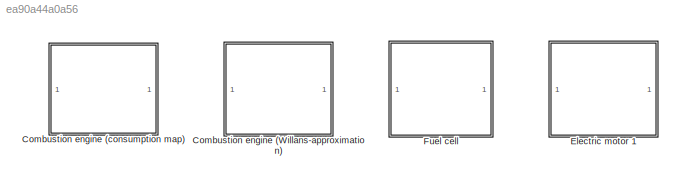
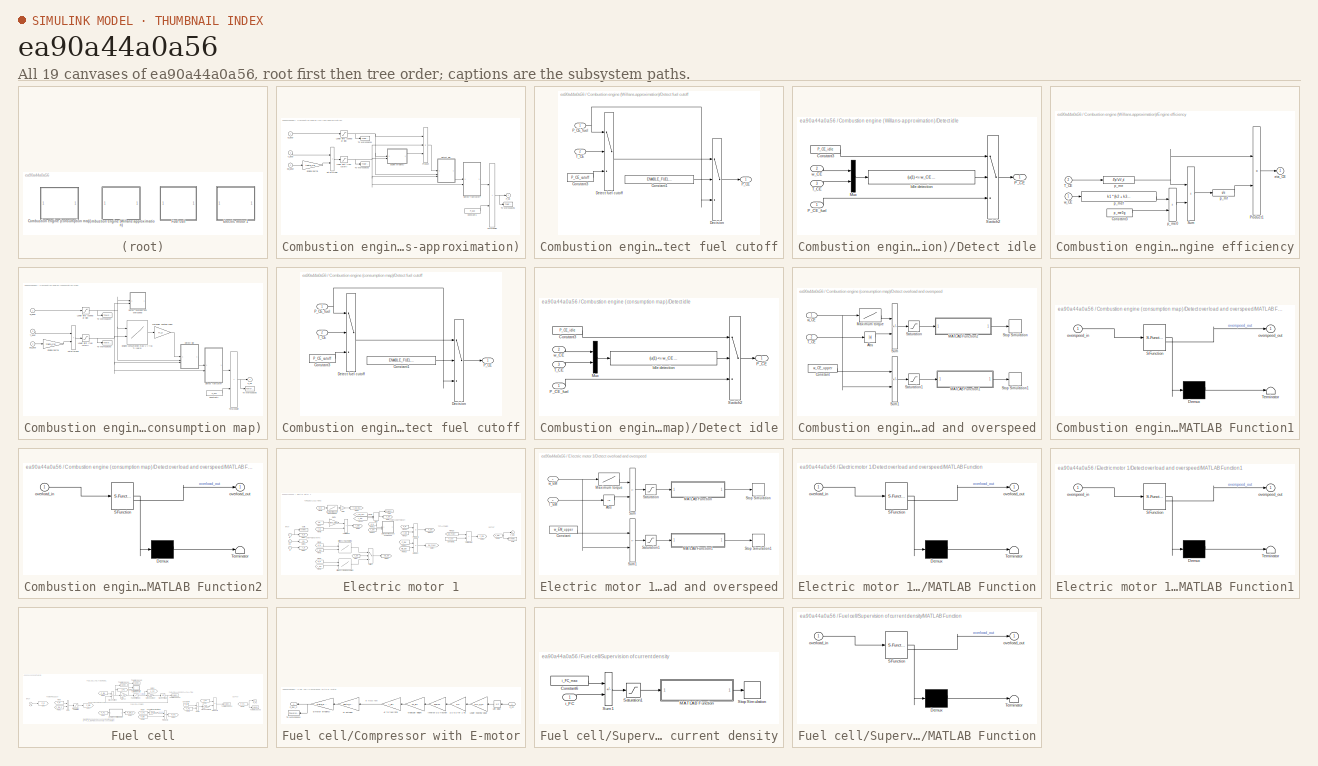
[diagram: thumbnail index - all 19 canvases of the model, root first then tree order]
MODEL slx_ea90a44a0a56
KIND library
CONFIG AbsTol = auto
CONFIG EnableMultiTasking = off
CONFIG FixedStep = auto
CONFIG MaxStep = auto
CONFIG MinStep = auto
CONFIG RelTol = 1e-3
CONFIG SampleTimeConstraint = Unconstrained
CONFIG SolverName = VariableStepAuto
CONFIG StartTime = 0.0
CONFIG StopTime = 10.0
BLOCK [SubSystem] Combustion engine (Willans-approximation)
  Tag = combustion engine
BLOCK [Constant] Combustion engine (Willans-approximation)/Constant1
  Value = P_aux
BLOCK [SubSystem] Combustion engine (Willans-approximation)/Detect fuel cutoff
  AncestorBlock = qss_tb_library/Energy Converter/Combustion Engine\n(consumption map)/Detect fuel cutoff
  LibrarySourceBlock = qss_tb_library/Energy Converter/Combustion Engine\n(consumption map)/Detect fuel cutoff
BLOCK [Constant] Combustion engine (Willans-approximation)/Detect fuel cutoff/Constant1
  Value = ENABLE_FUEL_CUTOFF
BLOCK [Constant] Combustion engine (Willans-approximation)/Detect fuel cutoff/Constant3
  Value = P_CE_cutoff
BLOCK [Switch] Combustion engine (Willans-approximation)/Detect fuel cutoff/Decision
  InputSameDT = off
  SaturateOnIntegerOverflow = off
  Threshold = 0.5
BLOCK [Switch] Combustion engine (Willans-approximation)/Detect fuel cutoff/Detect fuel cutoff
  Threshold = T_CE_cutoff + 0.01
BLOCK [Outport] Combustion engine (Willans-approximation)/Detect fuel cutoff/P_CE
BLOCK [Inport] Combustion engine (Willans-approximation)/Detect fuel cutoff/P_CE_fuel
BLOCK [Inport] Combustion engine (Willans-approximation)/Detect fuel cutoff/T_CE
  Port = 2
BLOCK [SubSystem] Combustion engine (Willans-approximation)/Detect idle
BLOCK [Constant] Combustion engine (Willans-approximation)/Detect idle/Constant3
  Value = P_CE_idle
BLOCK [Fcn] Combustion engine (Willans-approximation)/Detect idle/Idle detection
  Expr = (u(1) <= w_CE_idle) * (u(2) <= T_CE_idle)
BLOCK [Mux] Combustion engine (Willans-approximation)/Detect idle/Mux
  DisplayOption = bar
  Inputs = 2
BLOCK [Outport] Combustion engine (Willans-approximation)/Detect idle/P_CE
  InitialOutput = 0
BLOCK [Inport] Combustion engine (Willans-approximation)/Detect idle/P_CE_fuel
BLOCK [Switch] Combustion engine (Willans-approximation)/Detect idle/Switch2
  Threshold = 0.5
BLOCK [Inport] Combustion engine (Willans-approximation)/Detect idle/T_CE
  Port = 3
BLOCK [Inport] Combustion engine (Willans-approximation)/Detect idle/w_CE
  Port = 2
BLOCK [SubSystem] Combustion engine (Willans-approximation)/Engine efficiency
BLOCK [Constant] Combustion engine (Willans-approximation)/Engine efficiency/Constant3
  Value = p_me0g
BLOCK [Product] Combustion engine (Willans-approximation)/Engine efficiency/Product1
  InputSameDT = on
  Inputs = */
  OutDataTypeStr = Inherit: Same as first input
  RndMeth = Zero
  SaturateOnIntegerOverflow = on
BLOCK [Sum] Combustion engine (Willans-approximation)/Engine efficiency/Sum
  IconShape = rectangular
  InputSameDT = on
  OutDataTypeStr = Inherit: Same as first input
  SaturateOnIntegerOverflow = on
BLOCK [Inport] Combustion engine (Willans-approximation)/Engine efficiency/T_CE
  Port = 2
BLOCK [Outport] Combustion engine (Willans-approximation)/Engine efficiency/eta_CE
  InitialOutput = 0
BLOCK [Fcn] Combustion engine (Willans-approximation)/Engine efficiency/p_me
  Expr = 4*pi*u/V_d
BLOCK [Sum] Combustion engine (Willans-approximation)/Engine efficiency/p_me0
  IconShape = rectangular
  InputSameDT = on
  OutDataTypeStr = Inherit: Same as first input
  SaturateOnIntegerOverflow = on
BLOCK [Fcn] Combustion engine (Willans-approximation)/Engine efficiency/p_mef
  Expr = k1 * (k2 + k3*(S^2)*(u^2)) * PI * sqrt(k4/B)
BLOCK [Fcn] Combustion engine (Willans-approximation)/Engine efficiency/p_mf
  Expr = u/e
BLOCK [Inport] Combustion engine (Willans-approximation)/Engine efficiency/w_CE
BLOCK [Gain] Combustion engine (Willans-approximation)/Engine inertia
  Gain = theta_CE
  OutDataTypeStr = Inherit: Same as input
  ParamDataTypeStr = Inherit: Same as input
  SaturateOnIntegerOverflow = on
BLOCK [Saturate] Combustion engine (Willans-approximation)/Lower limit (fuel cutoff)
  LowerLimit = T_CE_cutoff
  UpperLimit = inf
BLOCK [Saturate] Combustion engine (Willans-approximation)/Lower limit (speed at idle)
  LowerLimit = w_CE_idle
  UpperLimit = inf
BLOCK [Outport] Combustion engine (Willans-approximation)/P_CE
  InitialOutput = 0
BLOCK [Product] Combustion engine (Willans-approximation)/Product
  InputSameDT = on
  Inputs = **/
  OutDataTypeStr = Inherit: Same as first input
  RndMeth = Zero
  SaturateOnIntegerOverflow = on
BLOCK [Inport] Combustion engine (Willans-approximation)/T_gear
  Port = 3
BLOCK [ToWorkspace] Combustion engine (Willans-approximation)/To Workspace3
  MaxDataPoints = inf
  NameLocation = top
  SampleTime = -1
  VariableName = T_CE
BLOCK [ToWorkspace] Combustion engine (Willans-approximation)/To Workspace4
  MaxDataPoints = inf
  SampleTime = -1
  VariableName = w_CE
BLOCK [ToWorkspace] Combustion engine (Willans-approximation)/To Workspace5
  MaxDataPoints = inf
  NameLocation = top
  SampleTime = -1
  VariableName = P_CE
BLOCK [Sum] Combustion engine (Willans-approximation)/Total power
  IconShape = rectangular
  InputSameDT = on
  OutDataTypeStr = Inherit: Same as first input
  SaturateOnIntegerOverflow = on
BLOCK [Sum] Combustion engine (Willans-approximation)/Total torque
  IconShape = rectangular
  InputSameDT = on
  OutDataTypeStr = Inherit: Same as first input
  SaturateOnIntegerOverflow = on
BLOCK [Inport] Combustion engine (Willans-approximation)/dw_gear
  Port = 2
BLOCK [Inport] Combustion engine (Willans-approximation)/w_gear
BLOCK [SubSystem] Combustion engine (consumption map)
  Tag = combustion engine
BLOCK [Constant] Combustion engine (consumption map)/Constant1
  Value = P_aux
BLOCK [SubSystem] Combustion engine (consumption map)/Detect fuel cutoff
BLOCK [Constant] Combustion engine (consumption map)/Detect fuel cutoff/Constant1
  Value = ENABLE_FUEL_CUTOFF
BLOCK [Constant] Combustion engine (consumption map)/Detect fuel cutoff/Constant3
  Value = P_CE_cutoff
BLOCK [Switch] Combustion engine (consumption map)/Detect fuel cutoff/Decision
  InputSameDT = off
  SaturateOnIntegerOverflow = off
  Threshold = 0.5
BLOCK [Switch] Combustion engine (consumption map)/Detect fuel cutoff/Detect fuel cutoff
  Threshold = T_CE_cutoff + 0.01
BLOCK [Outport] Combustion engine (consumption map)/Detect fuel cutoff/P_CE
BLOCK [Inport] Combustion engine (consumption map)/Detect fuel cutoff/P_CE_fuel
BLOCK [Inport] Combustion engine (consumption map)/Detect fuel cutoff/T_CE
  Port = 2
BLOCK [SubSystem] Combustion engine (consumption map)/Detect idle
BLOCK [Constant] Combustion engine (consumption map)/Detect idle/Constant3
  Value = P_CE_idle
BLOCK [Fcn] Combustion engine (consumption map)/Detect idle/Idle detection
  Expr = (u(1) <= w_CE_idle) * (u(2) <= T_CE_idle)
BLOCK [Mux] Combustion engine (consumption map)/Detect idle/Mux
  DisplayOption = bar
  Inputs = 2
BLOCK [Outport] Combustion engine (consumption map)/Detect idle/P_CE
  InitialOutput = 0
BLOCK [Inport] Combustion engine (consumption map)/Detect idle/P_CE_fuel
BLOCK [Switch] Combustion engine (consumption map)/Detect idle/Switch2
  Threshold = 0.5
BLOCK [Inport] Combustion engine (consumption map)/Detect idle/T_CE
  Port = 3
BLOCK [Inport] Combustion engine (consumption map)/Detect idle/w_CE
  Port = 2
BLOCK [SubSystem] Combustion engine (consumption map)/Detect overload and overspeed
BLOCK [Abs] Combustion engine (consumption map)/Detect overload and overspeed/Abs
BLOCK [Constant] Combustion engine (consumption map)/Detect overload and overspeed/Constant
  Value = w_CE_upper
BLOCK [SubSystem] Combustion engine (consumption map)/Detect overload and overspeed/MATLAB Function1
  ErrorFcn = Stateflow.Translate.translate
  PermitHierarchicalResolution = ExplicitOnly
  SFBlockType = MATLAB Function
  TreatAsAtomicUnit = on
BLOCK [Demux] Combustion engine (consumption map)/Detect overload and overspeed/MATLAB Function1/ Demux 
  Outputs = 1
BLOCK [S-Function] Combustion engine (consumption map)/Detect overload and overspeed/MATLAB Function1/ SFunction 
  EnableBusSupport = off
  FunctionName = sf_sfun
  PortCounts = [1 2]
  SFcnIsStateOwnerBlock = off
  SFunctionDeploymentMode = off
  Tag = Stateflow S-Function 6
BLOCK [Terminator] Combustion engine (consumption map)/Detect overload and overspeed/MATLAB Function1/ Terminator 
BLOCK [Inport] Combustion engine (consumption map)/Detect overload and overspeed/MATLAB Function1/overspeed_in
BLOCK [Outport] Combustion engine (consumption map)/Detect overload and overspeed/MATLAB Function1/overspeed_out
BLOCK [SubSystem] Combustion engine (consumption map)/Detect overload and overspeed/MATLAB Function2
  ErrorFcn = Stateflow.Translate.translate
  PermitHierarchicalResolution = ExplicitOnly
  SFBlockType = MATLAB Function
  TreatAsAtomicUnit = on
BLOCK [Demux] Combustion engine (consumption map)/Detect overload and overspeed/MATLAB Function2/ Demux 
  Outputs = 1
BLOCK [S-Function] Combustion engine (consumption map)/Detect overload and overspeed/MATLAB Function2/ SFunction 
  EnableBusSupport = off
  FunctionName = sf_sfun
  PortCounts = [1 2]
  SFcnIsStateOwnerBlock = off
  SFunctionDeploymentMode = off
  Tag = Stateflow S-Function 8
BLOCK [Terminator] Combustion engine (consumption map)/Detect overload and overspeed/MATLAB Function2/ Terminator 
BLOCK [Inport] Combustion engine (consumption map)/Detect overload and overspeed/MATLAB Function2/overload_in
BLOCK [Outport] Combustion engine (consumption map)/Detect overload and overspeed/MATLAB Function2/overload_out
BLOCK [Lookup] Combustion engine (consumption map)/Detect overload and overspeed/Maximum torque
  InputValues = w_CE_max
  Table = T_CE_max
BLOCK [Saturate] Combustion engine (consumption map)/Detect overload and overspeed/Saturation
  LowerLimit = -inf
  UpperLimit = 0
BLOCK [Saturate] Combustion engine (consumption map)/Detect overload and overspeed/Saturation1
  LowerLimit = -inf
  UpperLimit = 0
BLOCK [Stop] Combustion engine (consumption map)/Detect overload and overspeed/Stop Simulation
BLOCK [Stop] Combustion engine (consumption map)/Detect overload and overspeed/Stop Simulation1
BLOCK [Sum] Combustion engine (consumption map)/Detect overload and overspeed/Sum
  IconShape = rectangular
  InputSameDT = on
  Inputs = +-
  OutDataTypeStr = Inherit: Same as first input
  SaturateOnIntegerOverflow = on
BLOCK [Sum] Combustion engine (consumption map)/Detect overload and overspeed/Sum1
  IconShape = rectangular
  InputSameDT = on
  Inputs = +-
  OutDataTypeStr = Inherit: Same as first input
  SaturateOnIntegerOverflow = on
BLOCK [Inport] Combustion engine (consumption map)/Detect overload and overspeed/T_CE
  Port = 2
BLOCK [Inport] Combustion engine (consumption map)/Detect overload and overspeed/w_CE
BLOCK [Lookup2D] Combustion engine (consumption map)/Engine consumption map V = f(w, T) [kg//s]
  ColumnIndex = T_CE_col
  InputSameDT = off
  RowIndex = w_CE_row
  SaturateOnIntegerOverflow = off
  Table = V_CE_map
BLOCK [Gain] Combustion engine (consumption map)/Engine inertia
  Gain = theta_CE
  OutDataTypeStr = Inherit: Same as input
  ParamDataTypeStr = Inherit: Same as input
  SaturateOnIntegerOverflow = on
BLOCK [Gain] Combustion engine (consumption map)/Fuel lower heating value
  Gain = H_u
  OutDataTypeStr = Inherit: Same as input
  ParamDataTypeStr = Inherit: Same as input
  SaturateOnIntegerOverflow = on
BLOCK [Saturate] Combustion engine (consumption map)/Lower limit (fuel cutoff)
  LowerLimit = T_CE_cutoff
  UpperLimit = inf
BLOCK [Saturate] Combustion engine (consumption map)/Lower limit (speed at idle)
  LowerLimit = w_CE_idle
  UpperLimit = inf
BLOCK [Outport] Combustion engine (consumption map)/P_CE
  InitialOutput = 0
BLOCK [Inport] Combustion engine (consumption map)/T_gear
  Port = 3
BLOCK [ToWorkspace] Combustion engine (consumption map)/To Workspace3
  MaxDataPoints = inf
  NameLocation = top
  SampleTime = -1
  VariableName = T_CE
BLOCK [ToWorkspace] Combustion engine (consumption map)/To Workspace4
  MaxDataPoints = inf
  SampleTime = -1
  VariableName = w_CE
BLOCK [ToWorkspace] Combustion engine (consumption map)/To Workspace5
  MaxDataPoints = inf
  NameLocation = top
  SampleTime = -1
  VariableName = P_CE
BLOCK [Sum] Combustion engine (consumption map)/Total power
  IconShape = rectangular
  InputSameDT = on
  OutDataTypeStr = Inherit: Same as first input
  SaturateOnIntegerOverflow = on
BLOCK [Sum] Combustion engine (consumption map)/Total torque
  IconShape = rectangular
  InputSameDT = on
  OutDataTypeStr = Inherit: Same as first input
  SaturateOnIntegerOverflow = on
BLOCK [Inport] Combustion engine (consumption map)/dw_gear
  Port = 2
BLOCK [Inport] Combustion engine (consumption map)/w_gear
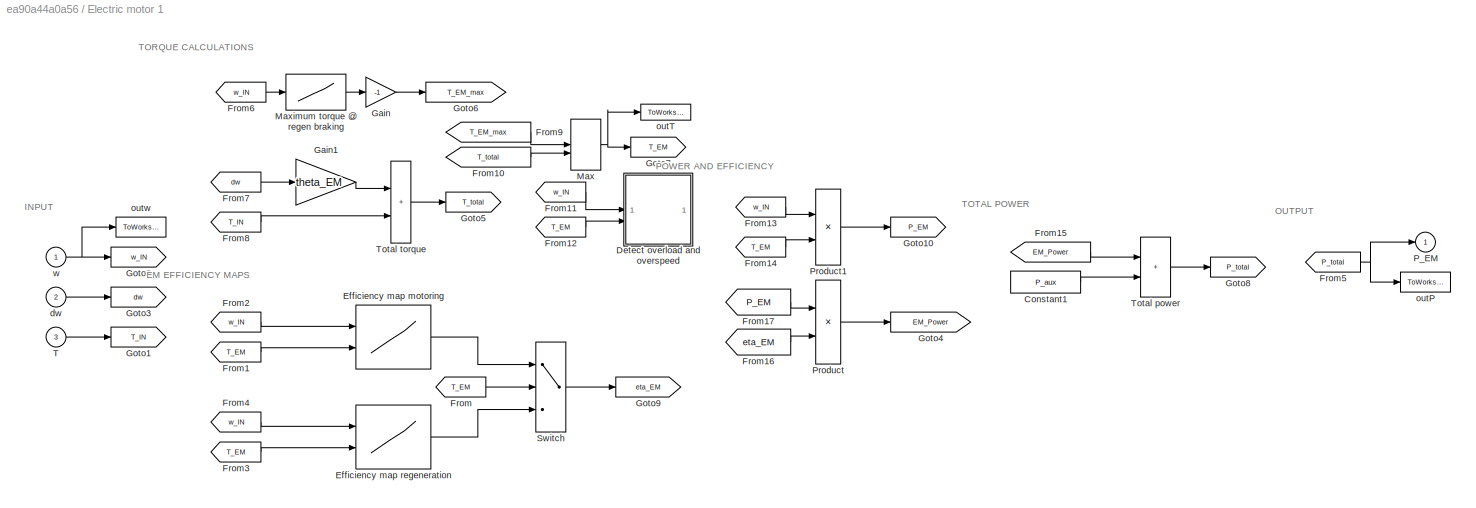
BLOCK [SubSystem] Electric motor 1
BLOCK [Constant] Electric motor 1/Constant1
  Value = P_aux
BLOCK [SubSystem] Electric motor 1/Detect overload and overspeed
BLOCK [Abs] Electric motor 1/Detect overload and overspeed/Abs
BLOCK [Constant] Electric motor 1/Detect overload and overspeed/Constant
  Value = w_EM_upper
BLOCK [SubSystem] Electric motor 1/Detect overload and overspeed/MATLAB Function
  ErrorFcn = Stateflow.Translate.translate
  PermitHierarchicalResolution = ExplicitOnly
  SFBlockType = MATLAB Function
  TreatAsAtomicUnit = on
BLOCK [Demux] Electric motor 1/Detect overload and overspeed/MATLAB Function/ Demux 
  Outputs = 1
BLOCK [S-Function] Electric motor 1/Detect overload and overspeed/MATLAB Function/ SFunction 
  EnableBusSupport = off
  FunctionName = sf_sfun
  PortCounts = [1 2]
  SFcnIsStateOwnerBlock = off
  SFunctionDeploymentMode = off
  Tag = Stateflow S-Function 1
BLOCK [Terminator] Electric motor 1/Detect overload and overspeed/MATLAB Function/ Terminator 
BLOCK [Inport] Electric motor 1/Detect overload and overspeed/MATLAB Function/overload_in
BLOCK [Outport] Electric motor 1/Detect overload and overspeed/MATLAB Function/overload_out
BLOCK [SubSystem] Electric motor 1/Detect overload and overspeed/MATLAB Function1
  ErrorFcn = Stateflow.Translate.translate
  PermitHierarchicalResolution = ExplicitOnly
  SFBlockType = MATLAB Function
  TreatAsAtomicUnit = on
BLOCK [Demux] Electric motor 1/Detect overload and overspeed/MATLAB Function1/ Demux 
  Outputs = 1
BLOCK [S-Function] Electric motor 1/Detect overload and overspeed/MATLAB Function1/ SFunction 
  EnableBusSupport = off
  FunctionName = sf_sfun
  PortCounts = [1 2]
  SFcnIsStateOwnerBlock = off
  SFunctionDeploymentMode = off
  Tag = Stateflow S-Function 2
BLOCK [Terminator] Electric motor 1/Detect overload and overspeed/MATLAB Function1/ Terminator 
BLOCK [Inport] Electric motor 1/Detect overload and overspeed/MATLAB Function1/overspeed_in
BLOCK [Outport] Electric motor 1/Detect overload and overspeed/MATLAB Function1/overspeed_out
BLOCK [Lookup] Electric motor 1/Detect overload and overspeed/Maximum torque
  InputValues = w_EM_row
  Table = T_EM_max
BLOCK [Saturate] Electric motor 1/Detect overload and overspeed/Saturation
  LowerLimit = -inf
  UpperLimit = 0
BLOCK [Saturate] Electric motor 1/Detect overload and overspeed/Saturation1
  LowerLimit = -inf
  UpperLimit = 0
BLOCK [Stop] Electric motor 1/Detect overload and overspeed/Stop Simulation
BLOCK [Stop] Electric motor 1/Detect overload and overspeed/Stop Simulation1
BLOCK [Sum] Electric motor 1/Detect overload and overspeed/Sum
  IconShape = rectangular
  InputSameDT = on
  Inputs = +-
  OutDataTypeStr = Inherit: Same as first input
  SaturateOnIntegerOverflow = on
BLOCK [Sum] Electric motor 1/Detect overload and overspeed/Sum1
  IconShape = rectangular
  InputSameDT = on
  Inputs = +-
  OutDataTypeStr = Inherit: Same as first input
  SaturateOnIntegerOverflow = on
BLOCK [Inport] Electric motor 1/Detect overload and overspeed/T_EM
  Port = 2
BLOCK [Inport] Electric motor 1/Detect overload and overspeed/w_EM
BLOCK [Lookup2D] Electric motor 1/Efficiency map motoring
  ColumnIndex = T_EM_col
  InputSameDT = off
  RowIndex = w_EM_row
  SaturateOnIntegerOverflow = off
  Table = eta_EM_mapM
BLOCK [Lookup2D] Electric motor 1/Efficiency map regeneration
  ColumnIndex = T_EM_col
  InputSameDT = off
  RowIndex = w_EM_row
  SaturateOnIntegerOverflow = off
  Table = eta_EM_mapG
BLOCK [From] Electric motor 1/From
  GotoTag = T_EM
BLOCK [From] Electric motor 1/From1
  GotoTag = T_EM
BLOCK [From] Electric motor 1/From10
  GotoTag = T_total
BLOCK [From] Electric motor 1/From11
  GotoTag = w_IN
BLOCK [From] Electric motor 1/From12
  GotoTag = T_EM
BLOCK [From] Electric motor 1/From13
  GotoTag = w_IN
BLOCK [From] Electric motor 1/From14
  GotoTag = T_EM
BLOCK [From] Electric motor 1/From15
  GotoTag = EM_Power
BLOCK [From] Electric motor 1/From16
  GotoTag = eta_EM
BLOCK [From] Electric motor 1/From17
  GotoTag = P_EM
BLOCK [From] Electric motor 1/From2
  GotoTag = w_IN
BLOCK [From] Electric motor 1/From3
  GotoTag = T_EM
BLOCK [From] Electric motor 1/From4
  GotoTag = w_IN
BLOCK [From] Electric motor 1/From5
  GotoTag = P_total
BLOCK [From] Electric motor 1/From6
  GotoTag = w_IN
BLOCK [From] Electric motor 1/From7
  GotoTag = dw
BLOCK [From] Electric motor 1/From8
  GotoTag = T_IN
BLOCK [From] Electric motor 1/From9
  GotoTag = T_EM_max
BLOCK [Gain] Electric motor 1/Gain
  Gain = -1
BLOCK [Gain] Electric motor 1/Gain1
  Gain = theta_EM
  OutDataTypeStr = Inherit: Same as input
  ParamDataTypeStr = Inherit: Same as input
  SaturateOnIntegerOverflow = on
BLOCK [Goto] Electric motor 1/Goto1
  GotoTag = T_IN
BLOCK [Goto] Electric motor 1/Goto10
  GotoTag = P_EM
BLOCK [Goto] Electric motor 1/Goto2
  GotoTag = w_IN
BLOCK [Goto] Electric motor 1/Goto3
  GotoTag = dw
BLOCK [Goto] Electric motor 1/Goto4
  GotoTag = EM_Power
BLOCK [Goto] Electric motor 1/Goto5
  GotoTag = T_total
BLOCK [Goto] Electric motor 1/Goto6
  GotoTag = T_EM_max
BLOCK [Goto] Electric motor 1/Goto7
  GotoTag = T_EM
BLOCK [Goto] Electric motor 1/Goto8
  GotoTag = P_total
BLOCK [Goto] Electric motor 1/Goto9
  GotoTag = eta_EM
BLOCK [MinMax] Electric motor 1/Max
  Function = max
  Inputs = 2
BLOCK [Lookup] Electric motor 1/Maximum torque @ regen braking
  InputValues = w_EM_row
  Table = T_EM_max
BLOCK [Outport] Electric motor 1/P_EM
  InitialOutput = 0
BLOCK [Product] Electric motor 1/Product
  InputSameDT = on
  OutDataTypeStr = Inherit: Same as first input
  RndMeth = Zero
  SaturateOnIntegerOverflow = on
BLOCK [Product] Electric motor 1/Product1
BLOCK [Switch] Electric motor 1/Switch
  Criteria = u2 > Threshold
  InputSameDT = off
  SaturateOnIntegerOverflow = off
BLOCK [Inport] Electric motor 1/T
  Port = 3
BLOCK [Sum] Electric motor 1/Total power
  IconShape = rectangular
  InputSameDT = on
  OutDataTypeStr = Inherit: Same as first input
  SaturateOnIntegerOverflow = on
BLOCK [Sum] Electric motor 1/Total torque
  IconShape = rectangular
  InputSameDT = on
  OutDataTypeStr = Inherit: Same as first input
  SaturateOnIntegerOverflow = on
BLOCK [Inport] Electric motor 1/dw
  Port = 2
BLOCK [ToWorkspace] Electric motor 1/outP
  MaxDataPoints = inf
  SampleTime = -1
  VariableName = P_EM1
BLOCK [ToWorkspace] Electric motor 1/outT
  MaxDataPoints = inf
  NameLocation = top
  SampleTime = -1
  VariableName = T_EM1
BLOCK [ToWorkspace] Electric motor 1/outw
  MaxDataPoints = inf
  NameLocation = top
  SampleTime = -1
  VariableName = w_EM1
BLOCK [Inport] Electric motor 1/w
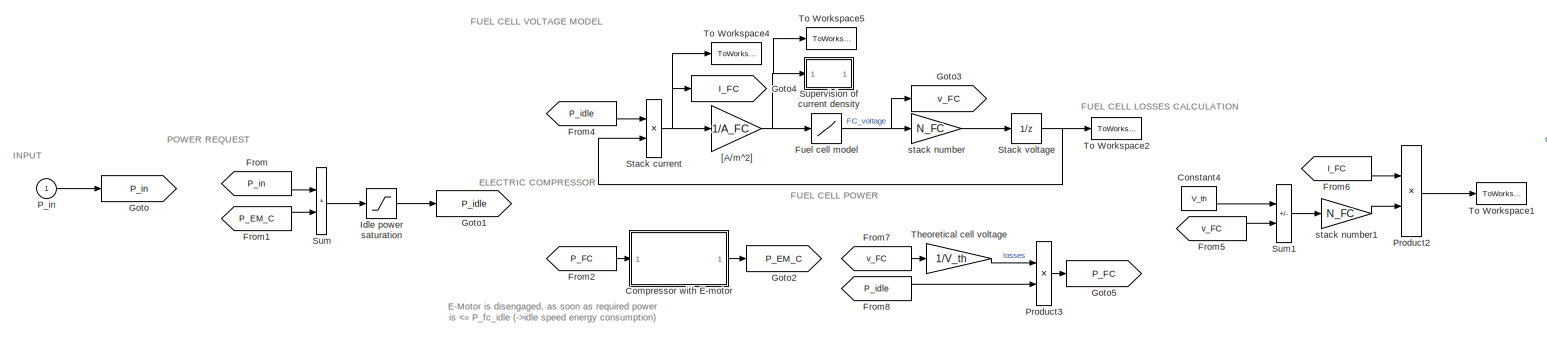
[diagram: Fuel cell - part 1/2, most of the canvas]
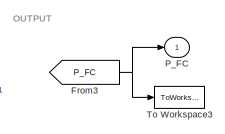
[diagram: Fuel cell - part 2/2, middle right region]
BLOCK [SubSystem] Fuel cell
  Tag = fuelcell
BLOCK [SubSystem] Fuel cell/Compressor with E-motor
BLOCK [Gain] Fuel cell/Compressor with E-motor/1//2 O2 for 1 H2
  Gain = 1/2
  OutDataTypeStr = Inherit: Same as input
  ParamDataTypeStr = Inherit: Same as input
  SaturateOnIntegerOverflow = on
BLOCK [Gain] Fuel cell/Compressor with E-motor/Air enthalpy
  Gain = delta_h_C_air
  OutDataTypeStr = Inherit: Same as input
  ParamDataTypeStr = Inherit: Same as input
  SaturateOnIntegerOverflow = on
BLOCK [Gain] Fuel cell/Compressor with E-motor/Air to fuel ratio
  Gain = l_air
  OutDataTypeStr = Inherit: Same as input
  ParamDataTypeStr = Inherit: Same as input
  SaturateOnIntegerOverflow = on
BLOCK [Gain] Fuel cell/Compressor with E-motor/E-motor efficiency
  Gain = 1/eta_EM_C
  OutDataTypeStr = Inherit: Same as input
  ParamDataTypeStr = Inherit: Same as input
  SaturateOnIntegerOverflow = on
BLOCK [Gain] Fuel cell/Compressor with E-motor/Inverse O2 fraction
  Gain = 100/21
  OutDataTypeStr = Inherit: Same as input
  ParamDataTypeStr = Inherit: Same as input
  SaturateOnIntegerOverflow = on
BLOCK [Gain] Fuel cell/Compressor with E-motor/Lower heating value
  Gain = 1/H_o_m
  OutDataTypeStr = Inherit: Same as input
  ParamDataTypeStr = Inherit: Same as input
  SaturateOnIntegerOverflow = on
BLOCK [Gain] Fuel cell/Compressor with E-motor/Molecular weight
  Gain = M_air
  OutDataTypeStr = Inherit: Same as input
  ParamDataTypeStr = Inherit: Same as input
  SaturateOnIntegerOverflow = on
BLOCK [Outport] Fuel cell/Compressor with E-motor/P_EM_C
  InitialOutput = 0
BLOCK [Inport] Fuel cell/Compressor with E-motor/P_FC
BLOCK [ToWorkspace] Fuel cell/Compressor with E-motor/To Workspace4
  MaxDataPoints = inf
  SampleTime = 1
  VariableName = P_EM_C
BLOCK [UnitDelay] Fuel cell/Compressor with E-motor/Unit Delay
  NameLocation = top
  SampleTime = h
BLOCK [Constant] Fuel cell/Constant4
  Value = V_th
BLOCK [From] Fuel cell/From
  GotoTag = P_in
BLOCK [From] Fuel cell/From1
  GotoTag = P_EM_C
BLOCK [From] Fuel cell/From2
  GotoTag = P_FC
BLOCK [From] Fuel cell/From3
  GotoTag = P_FC
BLOCK [From] Fuel cell/From4
  GotoTag = P_idle
BLOCK [From] Fuel cell/From5
  GotoTag = v_FC
BLOCK [From] Fuel cell/From6
  GotoTag = I_FC
BLOCK [From] Fuel cell/From7
  GotoTag = v_FC
BLOCK [From] Fuel cell/From8
  GotoTag = P_idle
BLOCK [Lookup] Fuel cell/Fuel cell model
  InputValues = i_FC_in
  Table = V_FC_out
BLOCK [Goto] Fuel cell/Goto
  GotoTag = P_in
BLOCK [Goto] Fuel cell/Goto1
  GotoTag = P_idle
BLOCK [Goto] Fuel cell/Goto2
  GotoTag = P_EM_C
BLOCK [Goto] Fuel cell/Goto3
  GotoTag = v_FC
BLOCK [Goto] Fuel cell/Goto4
  GotoTag = I_FC
BLOCK [Goto] Fuel cell/Goto5
  GotoTag = P_FC
BLOCK [Saturate] Fuel cell/Idle power saturation
  LowerLimit = P_FC_idle
  UpperLimit = Inf
BLOCK [Outport] Fuel cell/P_FC
  InitialOutput = 0
BLOCK [Inport] Fuel cell/P_in
BLOCK [Product] Fuel cell/Product2
  InputSameDT = on
  OutDataTypeStr = Inherit: Same as first input
  RndMeth = Zero
  SaturateOnIntegerOverflow = on
BLOCK [Product] Fuel cell/Product3
  InputSameDT = on
  Inputs = /*
  OutDataTypeStr = Inherit: Same as first input
  RndMeth = Zero
  SaturateOnIntegerOverflow = on
BLOCK [Product] Fuel cell/Stack current
  InputSameDT = on
  Inputs = */
  OutDataTypeStr = Inherit: Same as first input
  RndMeth = Zero
  SaturateOnIntegerOverflow = on
BLOCK [UnitDelay] Fuel cell/Stack voltage
  InitialCondition = V_th*N_FC
  SampleTime = h
BLOCK [Sum] Fuel cell/Sum
  IconShape = rectangular
  InputSameDT = on
  OutDataTypeStr = Inherit: Same as first input
  SaturateOnIntegerOverflow = on
BLOCK [Sum] Fuel cell/Sum1
  IconShape = rectangular
  InputSameDT = on
  Inputs = +-
  OutDataTypeStr = Inherit: Same as first input
  SaturateOnIntegerOverflow = on
BLOCK [SubSystem] Fuel cell/Supervision of current density
BLOCK [Inport] Fuel cell/Supervision of current density/   i_FC
BLOCK [Constant] Fuel cell/Supervision of current density/Constant6
  Value = i_FC_max
BLOCK [SubSystem] Fuel cell/Supervision of current density/MATLAB Function
  ErrorFcn = Stateflow.Translate.translate
  PermitHierarchicalResolution = ExplicitOnly
  SFBlockType = MATLAB Function
  TreatAsAtomicUnit = on
BLOCK [Demux] Fuel cell/Supervision of current density/MATLAB Function/ Demux 
  Outputs = 1
BLOCK [S-Function] Fuel cell/Supervision of current density/MATLAB Function/ SFunction 
  EnableBusSupport = off
  FunctionName = sf_sfun
  PortCounts = [1 2]
  SFcnIsStateOwnerBlock = off
  SFunctionDeploymentMode = off
  Tag = Stateflow S-Function 5
BLOCK [Terminator] Fuel cell/Supervision of current density/MATLAB Function/ Terminator 
BLOCK [Inport] Fuel cell/Supervision of current density/MATLAB Function/overload_in
BLOCK [Outport] Fuel cell/Supervision of current density/MATLAB Function/overload_out
BLOCK [Saturate] Fuel cell/Supervision of current density/Saturation1
  LowerLimit = -inf
  UpperLimit = 0
BLOCK [Stop] Fuel cell/Supervision of current density/Stop Simulation
BLOCK [Sum] Fuel cell/Supervision of current density/Sum1
  IconShape = rectangular
  InputSameDT = on
  Inputs = +-
  OutDataTypeStr = Inherit: Same as first input
  SaturateOnIntegerOverflow = on
BLOCK [Gain] Fuel cell/Theoretical cell voltage
  Gain = 1/V_th
  OutDataTypeStr = Inherit: Same as input
  ParamDataTypeStr = Inherit: Same as input
  SaturateOnIntegerOverflow = on
BLOCK [ToWorkspace] Fuel cell/To Workspace1
  MaxDataPoints = inf
  SampleTime = 1
  VariableName = P_loss
BLOCK [ToWorkspace] Fuel cell/To Workspace2
  MaxDataPoints = inf
  SampleTime = 1
  VariableName = V_FC
BLOCK [ToWorkspace] Fuel cell/To Workspace3
  MaxDataPoints = inf
  SampleTime = 1
  VariableName = P_FC
BLOCK [ToWorkspace] Fuel cell/To Workspace4
  MaxDataPoints = inf
  SampleTime = 1
  VariableName = I_FC
BLOCK [ToWorkspace] Fuel cell/To Workspace5
  MaxDataPoints = inf
  SampleTime = 1
  VariableName = i_FC
BLOCK [Gain] Fuel cell/[A//m^2]
  Gain = 1/A_FC
  OutDataTypeStr = Inherit: Same as input
  ParamDataTypeStr = Inherit: Same as input
  SaturateOnIntegerOverflow = on
BLOCK [Gain] Fuel cell/stack number
  Gain = N_FC
  OutDataTypeStr = Inherit: Same as input
  ParamDataTypeStr = Inherit: Same as input
  SaturateOnIntegerOverflow = on
BLOCK [Gain] Fuel cell/stack number1
  Gain = N_FC
  OutDataTypeStr = Inherit: Same as input
  ParamDataTypeStr = Inherit: Same as input
  SaturateOnIntegerOverflow = on
ANNOTATION Electric motor 1: EM EFFICIENCY MAPS
ANNOTATION Electric motor 1: INPUT
ANNOTATION Electric motor 1: OUTPUT
ANNOTATION Electric motor 1: POWER AND EFFICIENCY
ANNOTATION Electric motor 1: TORQUE CALCULATIONS
ANNOTATION Electric motor 1: TOTAL POWER
ANNOTATION Fuel cell: E-Motor is disengaged, as soon as required power is idle speed energy consumption)
ANNOTATION Fuel cell: ELECTRIC COMPRESSOR
ANNOTATION Fuel cell: FUEL CELL LOSSES CALCULATION
ANNOTATION Fuel cell: FUEL CELL POWER
ANNOTATION Fuel cell: FUEL CELL VOLTAGE MODEL
ANNOTATION Fuel cell: INPUT
ANNOTATION Fuel cell: OUTPUT
ANNOTATION Fuel cell: POWER REQUEST
ANNOTATION Fuel cell/Compressor with E-motor: Air mass flow
LINE Combustion engine (Willans-approximation)/Constant1:1 -> Combustion engine (Willans-approximation)/Total power:2
LINE Combustion engine (Willans-approximation)/Detect fuel cutoff:1 -> Combustion engine (Willans-approximation)/Total power:1
LINE Combustion engine (Willans-approximation)/Detect idle/Constant3:1 -> Combustion engine (Willans-approximation)/Detect idle/Switch2:1
LINE Combustion engine (Willans-approximation)/Detect idle/Idle detection:1 -> Combustion engine (Willans-approximation)/Detect idle/Switch2:2
LINE Combustion engine (Willans-approximation)/Detect idle/Mux:1 -> Combustion engine (Willans-approximation)/Detect idle/Idle detection:1
LINE Combustion engine (Willans-approximation)/Detect idle/P_CE_fuel:1 -> Combustion engine (Willans-approximation)/Detect idle/Switch2:3
LINE Combustion engine (Willans-approximation)/Detect idle/Switch2:1 -> Combustion engine (Willans-approximation)/Detect idle/P_CE:1
LINE Combustion engine (Willans-approximation)/Detect idle/T_CE:1 -> Combustion engine (Willans-approximation)/Detect idle/Mux:2
LINE Combustion engine (Willans-approximation)/Detect idle/w_CE:1 -> Combustion engine (Willans-approximation)/Detect idle/Mux:1
LINE Combustion engine (Willans-approximation)/Detect idle:1 -> Combustion engine (Willans-approximation)/Detect fuel cutoff:1
LINE Combustion engine (Willans-approximation)/Engine efficiency/Constant3:1 -> Combustion engine (Willans-approximation)/Engine efficiency/p_me0:2
LINE Combustion engine (Willans-approximation)/Engine efficiency/Product1:1 -> Combustion engine (Willans-approximation)/Engine efficiency/eta_CE:1
LINE Combustion engine (Willans-approximation)/Engine efficiency/Sum:1 -> Combustion engine (Willans-approximation)/Engine efficiency/p_mf:1
LINE Combustion engine (Willans-approximation)/Engine efficiency/T_CE:1 -> Combustion engine (Willans-approximation)/Engine efficiency/p_me:1
LINE Combustion engine (Willans-approximation)/Engine efficiency/p_me0:1 -> Combustion engine (Willans-approximation)/Engine efficiency/Sum:2
NET Combustion engine (Willans-approximation)/Engine efficiency/p_me:1 -> Combustion engine (Willans-approximation)/Engine efficiency/Product1:1, Combustion engine (Willans-approximation)/Engine efficiency/Sum:1
LINE Combustion engine (Willans-approximation)/Engine efficiency/p_mef:1 -> Combustion engine (Willans-approximation)/Engine efficiency/p_me0:1
LINE Combustion engine (Willans-approximation)/Engine efficiency/p_mf:1 -> Combustion engine (Willans-approximation)/Engine efficiency/Product1:2
LINE Combustion engine (Willans-approximation)/Engine efficiency/w_CE:1 -> Combustion engine (Willans-approximation)/Engine efficiency/p_mef:1
LINE Combustion engine (Willans-approximation)/Engine efficiency:1 -> Combustion engine (Willans-approximation)/Product:3
LINE Combustion engine (Willans-approximation)/Engine inertia:1 -> Combustion engine (Willans-approximation)/Total torque:2
NET Combustion engine (Willans-approximation)/Lower limit (fuel cutoff):1 -> Combustion engine (Willans-approximation)/Detect fuel cutoff:2, Combustion engine (Willans-approximation)/Detect idle:3, Combustion engine (Willans-approximation)/Engine efficiency:2, Combustion engine (Willans-approximation)/Product:2, Combustion engine (Willans-approximation)/To Workspace3:1
NET Combustion engine (Willans-approximation)/Lower limit (speed at idle):1 -> Combustion engine (Willans-approximation)/Detect idle:2, Combustion engine (Willans-approximation)/Engine efficiency:1, Combustion engine (Willans-approximation)/Product:1, Combustion engine (Willans-approximation)/To Workspace4:1
LINE Combustion engine (Willans-approximation)/Product:1 -> Combustion engine (Willans-approximation)/Detect idle:1
LINE Combustion engine (Willans-approximation)/T_gear:1 -> Combustion engine (Willans-approximation)/Total torque:1
NET Combustion engine (Willans-approximation)/Total power:1 -> Combustion engine (Willans-approximation)/P_CE:1, Combustion engine (Willans-approximation)/To Workspace5:1
LINE Combustion engine (Willans-approximation)/Total torque:1 -> Combustion engine (Willans-approximation)/Lower limit (fuel cutoff):1
LINE Combustion engine (Willans-approximation)/dw_gear:1 -> Combustion engine (Willans-approximation)/Engine inertia:1
LINE Combustion engine (Willans-approximation)/w_gear:1 -> Combustion engine (Willans-approximation)/Lower limit (speed at idle):1
LINE Combustion engine (consumption map)/Constant1:1 -> Combustion engine (consumption map)/Total power:2
LINE Combustion engine (consumption map)/Detect fuel cutoff/Constant1:1 -> Combustion engine (consumption map)/Detect fuel cutoff/Decision:2
LINE Combustion engine (consumption map)/Detect fuel cutoff/Constant3:1 -> Combustion engine (consumption map)/Detect fuel cutoff/Detect fuel cutoff:3
LINE Combustion engine (consumption map)/Detect fuel cutoff/Decision:1 -> Combustion engine (consumption map)/Detect fuel cutoff/P_CE:1
LINE Combustion engine (consumption map)/Detect fuel cutoff/Detect fuel cutoff:1 -> Combustion engine (consumption map)/Detect fuel cutoff/Decision:1
NET Combustion engine (consumption map)/Detect fuel cutoff/P_CE_fuel:1 -> Combustion engine (consumption map)/Detect fuel cutoff/Decision:3, Combustion engine (consumption map)/Detect fuel cutoff/Detect fuel cutoff:1
LINE Combustion engine (consumption map)/Detect fuel cutoff/T_CE:1 -> Combustion engine (consumption map)/Detect fuel cutoff/Detect fuel cutoff:2
LINE Combustion engine (consumption map)/Detect fuel cutoff:1 -> Combustion engine (consumption map)/Total power:1
LINE Combustion engine (consumption map)/Detect idle/Constant3:1 -> Combustion engine (consumption map)/Detect idle/Switch2:1
LINE Combustion engine (consumption map)/Detect idle/Idle detection:1 -> Combustion engine (consumption map)/Detect idle/Switch2:2
LINE Combustion engine (consumption map)/Detect idle/Mux:1 -> Combustion engine (consumption map)/Detect idle/Idle detection:1
LINE Combustion engine (consumption map)/Detect idle/P_CE_fuel:1 -> Combustion engine (consumption map)/Detect idle/Switch2:3
LINE Combustion engine (consumption map)/Detect idle/Switch2:1 -> Combustion engine (consumption map)/Detect idle/P_CE:1
LINE Combustion engine (consumption map)/Detect idle/T_CE:1 -> Combustion engine (consumption map)/Detect idle/Mux:2
LINE Combustion engine (consumption map)/Detect idle/w_CE:1 -> Combustion engine (consumption map)/Detect idle/Mux:1
LINE Combustion engine (consumption map)/Detect idle:1 -> Combustion engine (consumption map)/Detect fuel cutoff:1
LINE Combustion engine (consumption map)/Detect overload and overspeed/Abs:1 -> Combustion engine (consumption map)/Detect overload and overspeed/Sum:2
LINE Combustion engine (consumption map)/Detect overload and overspeed/Constant:1 -> Combustion engine (consumption map)/Detect overload and overspeed/Sum1:1
LINE Combustion engine (consumption map)/Detect overload and overspeed/MATLAB Function1:1 -> Combustion engine (consumption map)/Detect overload and overspeed/Stop Simulation1:1
LINE Combustion engine (consumption map)/Detect overload and overspeed/MATLAB Function2:1 -> Combustion engine (consumption map)/Detect overload and overspeed/Stop Simulation:1
LINE Combustion engine (consumption map)/Detect overload and overspeed/Maximum torque:1 -> Combustion engine (consumption map)/Detect overload and overspeed/Sum:1
LINE Combustion engine (consumption map)/Detect overload and overspeed/Saturation1:1 -> Combustion engine (consumption map)/Detect overload and overspeed/MATLAB Function1:1
LINE Combustion engine (consumption map)/Detect overload and overspeed/Saturation:1 -> Combustion engine (consumption map)/Detect overload and overspeed/MATLAB Function2:1
LINE Combustion engine (consumption map)/Detect overload and overspeed/Sum1:1 -> Combustion engine (consumption map)/Detect overload and overspeed/Saturation1:1
LINE Combustion engine (consumption map)/Detect overload and overspeed/Sum:1 -> Combustion engine (consumption map)/Detect overload and overspeed/Saturation:1
LINE Combustion engine (consumption map)/Detect overload and overspeed/T_CE:1 -> Combustion engine (consumption map)/Detect overload and overspeed/Abs:1
NET Combustion engine (consumption map)/Detect overload and overspeed/w_CE:1 -> Combustion engine (consumption map)/Detect overload and overspeed/Maximum torque:1, Combustion engine (consumption map)/Detect overload and overspeed/Sum1:2
LINE Combustion engine (consumption map)/Engine consumption map V = f(w, T) [kg//s]:1 -> Combustion engine (consumption map)/Fuel lower heating value:1
LINE Combustion engine (consumption map)/Engine inertia:1 -> Combustion engine (consumption map)/Total torque:2
LINE Combustion engine (consumption map)/Fuel lower heating value:1 -> Combustion engine (consumption map)/Detect idle:1
NET Combustion engine (consumption map)/Lower limit (fuel cutoff):1 -> Combustion engine (consumption map)/Detect fuel cutoff:2, Combustion engine (consumption map)/Detect idle:3, Combustion engine (consumption map)/Detect overload and overspeed:2, Combustion engine (consumption map)/Engine consumption map V = f(w, T) [kg//s]:2, Combustion engine (consumption map)/To Workspace3:1
NET Combustion engine (consumption map)/Lower limit (speed at idle):1 -> Combustion engine (consumption map)/Detect idle:2, Combustion engine (consumption map)/Detect overload and overspeed:1, Combustion engine (consumption map)/Engine consumption map V = f(w, T) [kg//s]:1, Combustion engine (consumption map)/To Workspace4:1
LINE Combustion engine (consumption map)/T_gear:1 -> Combustion engine (consumption map)/Total torque:1
NET Combustion engine (consumption map)/Total power:1 -> Combustion engine (consumption map)/P_CE:1, Combustion engine (consumption map)/To Workspace5:1
LINE Combustion engine (consumption map)/Total torque:1 -> Combustion engine (consumption map)/Lower limit (fuel cutoff):1
LINE Combustion engine (consumption map)/dw_gear:1 -> Combustion engine (consumption map)/Engine inertia:1
LINE Combustion engine (consumption map)/w_gear:1 -> Combustion engine (consumption map)/Lower limit (speed at idle):1
LINE Electric motor 1/Constant1:1 -> Electric motor 1/Total power:2
LINE Electric motor 1/Detect overload and overspeed/Abs:1 -> Electric motor 1/Detect overload and overspeed/Sum:2
LINE Electric motor 1/Detect overload and overspeed/Constant:1 -> Electric motor 1/Detect overload and overspeed/Sum1:1
LINE Electric motor 1/Detect overload and overspeed/MATLAB Function1:1 -> Electric motor 1/Detect overload and overspeed/Stop Simulation1:1
LINE Electric motor 1/Detect overload and overspeed/MATLAB Function:1 -> Electric motor 1/Detect overload and overspeed/Stop Simulation:1
LINE Electric motor 1/Detect overload and overspeed/Maximum torque:1 -> Electric motor 1/Detect overload and overspeed/Sum:1
LINE Electric motor 1/Detect overload and overspeed/Saturation1:1 -> Electric motor 1/Detect overload and overspeed/MATLAB Function1:1
LINE Electric motor 1/Detect overload and overspeed/Saturation:1 -> Electric motor 1/Detect overload and overspeed/MATLAB Function:1
LINE Electric motor 1/Detect overload and overspeed/Sum1:1 -> Electric motor 1/Detect overload and overspeed/Saturation1:1
LINE Electric motor 1/Detect overload and overspeed/Sum:1 -> Electric motor 1/Detect overload and overspeed/Saturation:1
LINE Electric motor 1/Detect overload and overspeed/T_EM:1 -> Electric motor 1/Detect overload and overspeed/Abs:1
NET Electric motor 1/Detect overload and overspeed/w_EM:1 -> Electric motor 1/Detect overload and overspeed/Maximum torque:1, Electric motor 1/Detect overload and overspeed/Sum1:2
LINE Electric motor 1/Efficiency map motoring:1 -> Electric motor 1/Switch:1
LINE Electric motor 1/Efficiency map regeneration:1 -> Electric motor 1/Switch:3
LINE Electric motor 1/From10:1 -> Electric motor 1/Max:2
LINE Electric motor 1/From11:1 -> Electric motor 1/Detect overload and overspeed:1
LINE Electric motor 1/From12:1 -> Electric motor 1/Detect overload and overspeed:2
LINE Electric motor 1/From13:1 -> Electric motor 1/Product1:1
LINE Electric motor 1/From14:1 -> Electric motor 1/Product1:2
LINE Electric motor 1/From15:1 -> Electric motor 1/Total power:1
LINE Electric motor 1/From16:1 -> Electric motor 1/Product:2
LINE Electric motor 1/From17:1 -> Electric motor 1/Product:1
LINE Electric motor 1/From1:1 -> Electric motor 1/Efficiency map motoring:2
LINE Electric motor 1/From2:1 -> Electric motor 1/Efficiency map motoring:1
LINE Electric motor 1/From3:1 -> Electric motor 1/Efficiency map regeneration:2
LINE Electric motor 1/From4:1 -> Electric motor 1/Efficiency map regeneration:1
NET Electric motor 1/From5:1 -> Electric motor 1/P_EM:1, Electric motor 1/outP:1
LINE Electric motor 1/From6:1 -> Electric motor 1/Maximum torque @ regen braking:1
LINE Electric motor 1/From7:1 -> Electric motor 1/Gain1:1
LINE Electric motor 1/From8:1 -> Electric motor 1/Total torque:2
LINE Electric motor 1/From9:1 -> Electric motor 1/Max:1
LINE Electric motor 1/From:1 -> Electric motor 1/Switch:2
LINE Electric motor 1/Gain1:1 -> Electric motor 1/Total torque:1
LINE Electric motor 1/Gain:1 -> Electric motor 1/Goto6:1
NET Electric motor 1/Max:1 -> Electric motor 1/Goto7:1, Electric motor 1/outT:1
LINE Electric motor 1/Maximum torque @ regen braking:1 -> Electric motor 1/Gain:1
LINE Electric motor 1/Product1:1 -> Electric motor 1/Goto10:1
LINE Electric motor 1/Product:1 -> Electric motor 1/Goto4:1
LINE Electric motor 1/Switch:1 -> Electric motor 1/Goto9:1
LINE Electric motor 1/T:1 -> Electric motor 1/Goto1:1
LINE Electric motor 1/Total power:1 -> Electric motor 1/Goto8:1
LINE Electric motor 1/Total torque:1 -> Electric motor 1/Goto5:1
LINE Electric motor 1/dw:1 -> Electric motor 1/Goto3:1
NET Electric motor 1/w:1 -> Electric motor 1/Goto2:1, Electric motor 1/outw:1
LINE Fuel cell/Compressor with E-motor/1//2 O2 for 1 H2:1 -> Fuel cell/Compressor with E-motor/Inverse O2 fraction:1
LINE Fuel cell/Compressor with E-motor/Air enthalpy:1 -> Fuel cell/Compressor with E-motor/E-motor efficiency:1
LINE Fuel cell/Compressor with E-motor/Air to fuel ratio:1 -> Fuel cell/Compressor with E-motor/Air enthalpy:1
NET Fuel cell/Compressor with E-motor/E-motor efficiency:1 -> Fuel cell/Compressor with E-motor/P_EM_C:1, Fuel cell/Compressor with E-motor/To Workspace4:1
LINE Fuel cell/Compressor with E-motor/Inverse O2 fraction:1 -> Fuel cell/Compressor with E-motor/Molecular weight:1
LINE Fuel cell/Compressor with E-motor/Lower heating value:1 -> Fuel cell/Compressor with E-motor/1//2 O2 for 1 H2:1
LINE Fuel cell/Compressor with E-motor/Molecular weight:1 -> Fuel cell/Compressor with E-motor/Air to fuel ratio:1
LINE Fuel cell/Compressor with E-motor/P_FC:1 -> Fuel cell/Compressor with E-motor/Unit Delay:1
LINE Fuel cell/Compressor with E-motor/Unit Delay:1 -> Fuel cell/Compressor with E-motor/Lower heating value:1
LINE Fuel cell/Compressor with E-motor:1 -> Fuel cell/Goto2:1
LINE Fuel cell/Constant4:1 -> Fuel cell/Sum1:1
LINE Fuel cell/From1:1 -> Fuel cell/Sum:2
LINE Fuel cell/From2:1 -> Fuel cell/Compressor with E-motor:1
NET Fuel cell/From3:1 -> Fuel cell/P_FC:1, Fuel cell/To Workspace3:1
LINE Fuel cell/From4:1 -> Fuel cell/Stack current:1
LINE Fuel cell/From5:1 -> Fuel cell/Sum1:2
LINE Fuel cell/From6:1 -> Fuel cell/Product2:1
LINE Fuel cell/From7:1 -> Fuel cell/Theoretical cell voltage:1
LINE Fuel cell/From8:1 -> Fuel cell/Product3:2
LINE Fuel cell/From:1 -> Fuel cell/Sum:1
NET Fuel cell/Fuel cell model:1 -> Fuel cell/Goto3:1, Fuel cell/stack number:1
LINE Fuel cell/Idle power saturation:1 -> Fuel cell/Goto1:1
LINE Fuel cell/P_in:1 -> Fuel cell/Goto:1
LINE Fuel cell/Product2:1 -> Fuel cell/To Workspace1:1
LINE Fuel cell/Product3:1 -> Fuel cell/Goto5:1
NET Fuel cell/Stack current:1 -> Fuel cell/Goto4:1, Fuel cell/To Workspace4:1, Fuel cell/[A//m^2]:1
NET Fuel cell/Stack voltage:1 -> Fuel cell/Stack current:2, Fuel cell/To Workspace2:1
LINE Fuel cell/Sum1:1 -> Fuel cell/stack number1:1
LINE Fuel cell/Sum:1 -> Fuel cell/Idle power saturation:1
LINE Fuel cell/Supervision of current density/   i_FC:1 -> Fuel cell/Supervision of current density/Sum1:2
LINE Fuel cell/Supervision of current density/Constant6:1 -> Fuel cell/Supervision of current density/Sum1:1
LINE Fuel cell/Supervision of current density/MATLAB Function:1 -> Fuel cell/Supervision of current density/Stop Simulation:1
LINE Fuel cell/Supervision of current density/Saturation1:1 -> Fuel cell/Supervision of current density/MATLAB Function:1
LINE Fuel cell/Supervision of current density/Sum1:1 -> Fuel cell/Supervision of current density/Saturation1:1
LINE Fuel cell/Theoretical cell voltage:1 -> Fuel cell/Product3:1
NET Fuel cell/[A//m^2]:1 -> Fuel cell/Fuel cell model:1, Fuel cell/Supervision of current density:1, Fuel cell/To Workspace5:1
LINE Fuel cell/stack number1:1 -> Fuel cell/Product2:2
LINE Fuel cell/stack number:1 -> Fuel cell/Stack voltage:1
note: NET lines group one-source signal fan-out (src -> all destinations, sorted); 1:1 wires keep LINE
CHART Electric motor 1/Detect overload
and overspeed/MATLAB Function1 states=1 transitions=1
  STATE_LABEL 'eML_blk_kernel()'
  STATE_LABEL "SCRIPT:\nfunction overspeed_out = overspeed_fnc(overspeed_in)\n\nif overspeed_in~=0\n     disp('Simulation stopped due to Motor Overspeed.')\nend\n\noverspeed_out = overspeed_in;\n"
CHART Fuel cell/Supervision
of current density/MATLAB Function states=1 transitions=1
  STATE_LABEL 'eML_blk_kernel()'
  STATE_LABEL "SCRIPT:\nfunction overload_out = overload_fnc(overload_in)\n\nif overload_in~=0\n    disp('Simulation stopped due to Fuel Cell Current Overload.')\nend\n\noverload_out = overload_in;\n"
CHART Combustion engine 
(consumption map)/Detect overload
and overspeed/MATLAB Function1 states=1 transitions=1
  STATE_LABEL 'eML_blk_kernel()'
  STATE_LABEL "SCRIPT:\nfunction overspeed_out = overspeed_fnc(overspeed_in)\n\nif overspeed_in~=0\n    disp('Simulation stopped due to Engine Overspeed.')\nend\n\noverspeed_out = overspeed_in;\n"
CHART Combustion engine 
(consumption map)/Detect overload
and overspeed/MATLAB Function2 states=1 transitions=1
  STATE_LABEL 'eML_blk_kernel()'
  STATE_LABEL "SCRIPT:\nfunction overload_out = overload_fnc(overload_in)\n\nif overload_in~=0\n    disp('Simulation stopped due to Engine Overload.')\nend\n\noverload_out = overload_in;\n"
CHART Electric motor 1/Detect overload
and overspeed/MATLAB Function states=1 transitions=1
  STATE_LABEL 'eML_blk_kernel()'
  STATE_LABEL "SCRIPT:\nfunction overload_out = overload_fnc(overload_in)\n\nif overload_in~=0\n    disp('Simulation stopped due to Motor Overload.')\nend\n\noverload_out = overload_in;\n"
CHART  states=0 transitions=0
CHART  states=0 transitions=0
CHART  states=0 transitions=0
CHART  states=0 transitions=0
CHART  states=0 transitions=0
